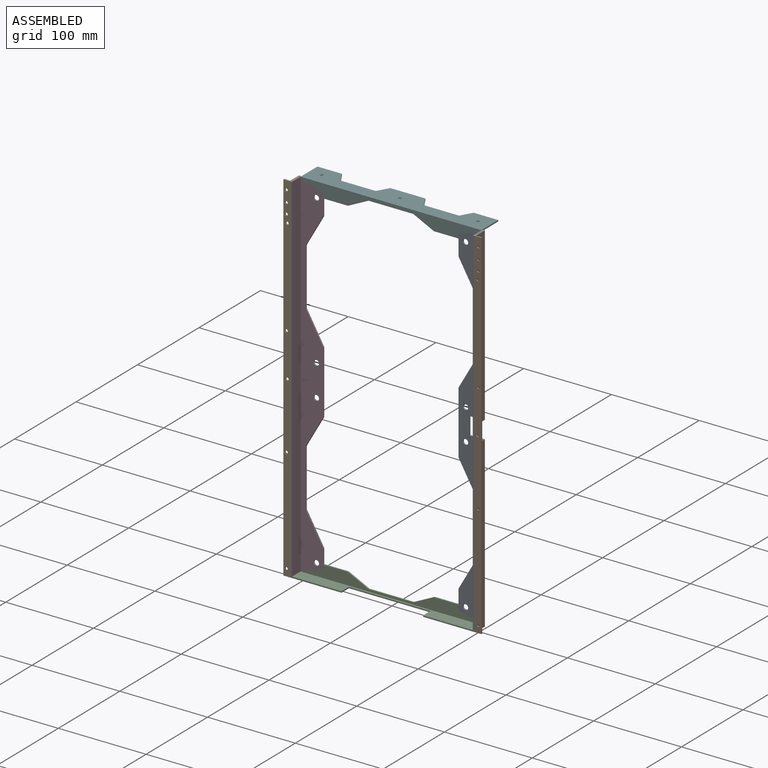
[diagram: assembled view]
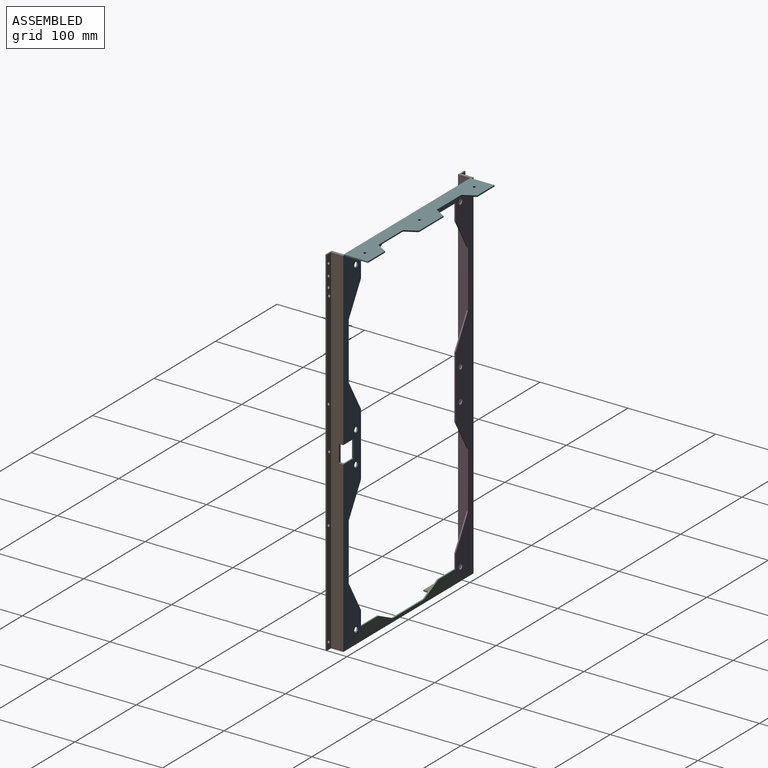
[diagram: assembled view, second angle]
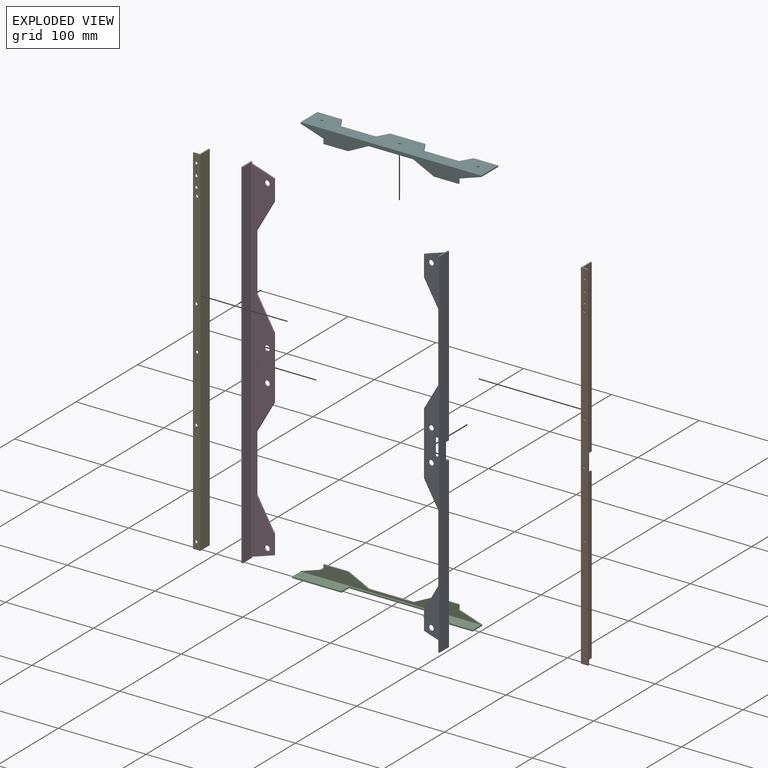
[diagram: exploded view]
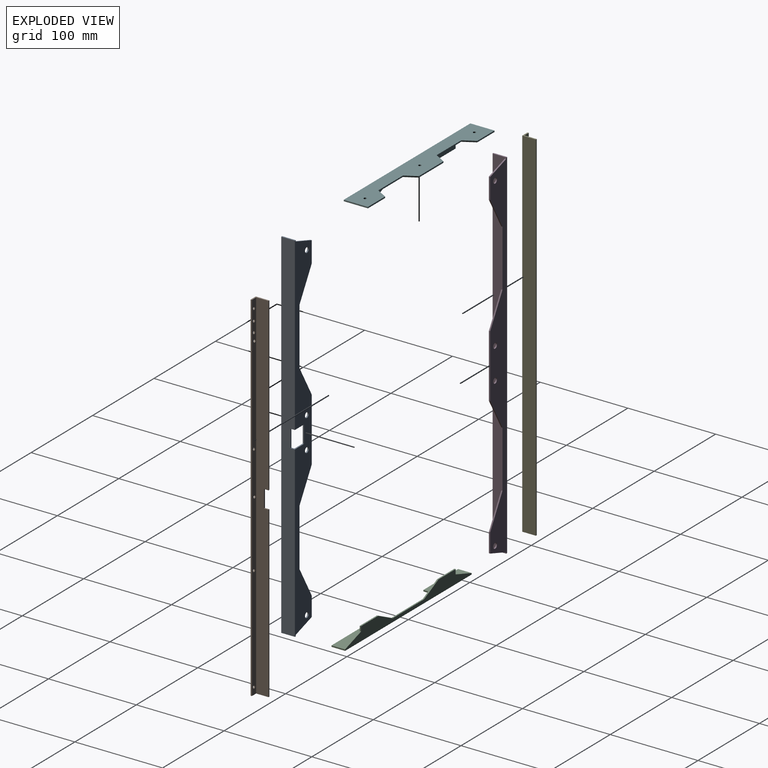
[diagram: exploded view, second angle]
ASSEMBLY  parts=6 mates=6
PART A: 26 faces, bbox 27.5x15.5x408 mm
  f0: plane 408x15.5mm, normal (1,0,0), area 6224mm2, adj f4,f6,f7,f8,f22,f23,f24
  f1: plane 72x1.5mm, normal (-1,0,0), area 108mm2, adj f4,f5,f12,f15
  f2: plane 24x1.5mm, normal (-1,0,0), area 36mm2, adj f4,f5,f11,f17
  f3: plane 22x1.5mm, normal (-1,0,0), area 33mm2, adj f4,f5,f10,f16
  f4: plane 408x27.5mm, normal (0,1,0), area 6507.9mm2, adj f0,f1,f2,f3,f6,f7,f9,f10
  f5: plane 405x26mm, normal (0,-1,0), area 5925.9mm2, adj f1,f2,f3,f9,f10,f11,f12,f13
  f6: plane 15.5x1.5mm, normal (0,0,1), area 23.3mm2, adj f0,f4,f8,f9
  f7: plane 15.5x1.5mm, normal (0,0,-1), area 23.3mm2, adj f0,f4,f8,f9
  f8: plane 408x1.5mm, normal (0,-1,0), area 612mm2, adj f0,f6,f7,f9
  f9: plane 408x15.5mm, normal (-1,0,0), area 5646.5mm2, adj f4,f5,f6,f7,f8,f10,f17,f22
  f10: plane 26x8.5mm, normal (-0.31,0,-0.95), area 41mm2, adj f3,f4,f5,f9
  f11: plane 35x20mm, normal (-0.87,0,-0.5), area 60.5mm2, adj f2,f4,f5,f13
  f12: plane 35x20mm, normal (-0.87,0,0.5), area 60.5mm2, adj f1,f4,f5,f13
  f13: plane 65x1.5mm, normal (-1,0,0), area 97.5mm2, adj f4,f5,f11,f12
  f14: plane 65x1.5mm, normal (-1,0,0), area 97.5mm2, adj f4,f5,f15,f16
  f15: plane 35x20mm, normal (-0.87,0,-0.5), area 60.5mm2, adj f1,f4,f5,f14
  f16: plane 35x20mm, normal (-0.87,0,0.5), area 60.5mm2, adj f3,f4,f5,f14
  f17: plane 26x8.5mm, normal (-0.31,0,0.95), area 41mm2, adj f2,f4,f5,f9
  f18: cylinder r=3mm len=6mm, axis (0,1,0), area 28.3mm2, adj f4,f5
  f19: cylinder r=3mm len=6mm, axis (0,1,0), area 28.3mm2, adj f4,f5
  f20: cylinder r=3mm len=6mm, axis (0,1,0), area 28.3mm2, adj f4,f5
  f21: cylinder r=3mm len=6mm, axis (0,1,0), area 28.3mm2, adj f4,f5
  f22: plane 15x5mm, normal (0,0,-1), area 27.7mm2, adj f0,f4,f5,f9,f23,f25
  f23: plane 20x1.5mm, normal (0,1,0), area 30mm2, adj f0,f9,f22,f24
  f24: plane 15x5mm, normal (0,0,1), area 27.7mm2, adj f0,f4,f5,f9,f23,f25
  f25: plane 20x1.5mm, normal (1,0,0), area 30mm2, adj f4,f5,f22,f24
PART B: 20 faces, bbox 8.3x15.5x408 mm
  f0: plane 193x1.5mm, normal (0,1,0), area 289.5mm2, adj f1,f2,f8,f18
  f1: plane 408x15.5mm, normal (-1,0,0), area 6224mm2, adj f0,f3,f6,f7,f8,f17,f18,f19
  f2: plane 408x14mm, normal (1,0,0), area 5612mm2, adj f0,f3,f4,f7,f8,f17,f18,f19
  f3: plane 195x1.5mm, normal (0,1,0), area 292.5mm2, adj f1,f2,f7,f17
  f4: plane 408x6.8mm, normal (0,1,0), area 2709mm2, adj f2,f5,f7,f8,f9,f10,f11,f12
  f5: plane 408x1.5mm, normal (1,0,0), area 612mm2, adj f4,f6,f7,f8
  f6: plane 408x8.3mm, normal (0,-1,0), area 3321mm2, adj f1,f5,f7,f8,f9,f10,f11,f12
  f7: plane 15.5x8.3mm, normal (0,0,1), area 33.5mm2, adj f1,f2,f3,f4,f5,f6
  f8: plane 15.5x8.3mm, normal (0,0,-1), area 33.5mm2, adj f0,f1,f2,f4,f5,f6
  f9: cylinder r=1.6mm len=3.2mm, axis (0,-1,0), area 15.1mm2, adj f4,f6
  f10: cylinder r=1.6mm len=3.2mm, axis (0,-1,0), area 15.1mm2, adj f4,f6
  f11: cylinder r=1.6mm len=3.2mm, axis (0,-1,0), area 15.1mm2, adj f4,f6
  f12: cylinder r=1.6mm len=3.2mm, axis (0,-1,0), area 15.1mm2, adj f4,f6
  f13: cylinder r=1.6mm len=3.2mm, axis (0,-1,0), area 15.1mm2, adj f4,f6
  f14: cylinder r=1.6mm len=3.2mm, axis (0,-1,0), area 15.1mm2, adj f4,f6
  f15: cylinder r=1.65mm len=3.3mm, axis (0,-1,0), area 15.6mm2, adj f4,f6
  f16: cylinder r=1.65mm len=3.3mm, axis (0,-1,0), area 15.6mm2, adj f4,f6
  f17: plane 5x1.5mm, normal (0,0,-1), area 7.5mm2, adj f1,f2,f3,f19
  f18: plane 5x1.5mm, normal (0,0,1), area 7.5mm2, adj f0,f1,f2,f19
  f19: plane 20x1.5mm, normal (0,1,0), area 30mm2, adj f1,f2,f17,f18
PART C: 20 faces, bbox 206x15.5x15.5 mm
  f0: plane 56.5x1.5mm, normal (0,-1,0), area 84.7mm2, adj f5,f7,f9,f17
  f1: plane 28x1.5mm, normal (0,0,1), area 42mm2, adj f3,f4,f12,f15
  f2: plane 28x1.5mm, normal (0,0,1), area 42mm2, adj f3,f4,f10,f14
  f3: plane 206x15.5mm, normal (0,1,0), area 1829.2mm2, adj f1,f2,f7,f8,f9,f10,f11,f12
  f4: plane 206x14mm, normal (0,-1,0), area 1520.2mm2, adj f1,f2,f5,f10,f11,f12,f13,f14
  f5: plane 206x14mm, normal (0,0,1), area 1768mm2, adj f0,f4,f6,f8,f9,f17,f18,f19
  f6: plane 56.5x1.5mm, normal (0,-1,0), area 84.7mm2, adj f5,f7,f8,f18
  f7: plane 206x15.5mm, normal (0,0,-1), area 2077mm2, adj f0,f3,f6,f8,f9,f17,f18,f19
  f8: plane 15.5x1.5mm, normal (1,0,0), area 23.2mm2, adj f3,f5,f6,f7,f16
  f9: plane 15.5x1.5mm, normal (-1,0,0), area 23.2mm2, adj f0,f3,f5,f7,f11
  f10: plane 5.5x1.5mm, normal (-1,0,0), area 8.3mm2, adj f2,f3,f4,f11
  f11: plane 26x8.5mm, normal (-0.31,0,0.95), area 41mm2, adj f3,f4,f9,f10
  f12: plane 23.5x11.5mm, normal (-0.44,0,0.9), area 39.2mm2, adj f1,f3,f4,f13
  f13: plane 51x1.5mm, normal (0,0,1), area 76.5mm2, adj f3,f4,f12,f14
  f14: plane 23.5x11.5mm, normal (0.44,0,0.9), area 39.2mm2, adj f2,f3,f4,f13
  f15: plane 5.5x1.5mm, normal (1,0,0), area 8.3mm2, adj f1,f3,f4,f16
  f16: plane 26x8.5mm, normal (0.31,0,0.95), area 41mm2, adj f3,f4,f8,f15
  f17: plane 12x1.5mm, normal (1,0,0), area 18mm2, adj f0,f5,f7,f19
  f18: plane 12x1.5mm, normal (-1,0,0), area 18mm2, adj f5,f6,f7,f19
  f19: plane 93x1.5mm, normal (0,-1,0), area 139.5mm2, adj f5,f7,f17,f18
PART D: 22 faces, bbox 27.5x15.5x408 mm
  f0: plane 72x1.5mm, normal (1,0,0), area 108mm2, adj f3,f4,f12,f15
  f1: plane 24x1.5mm, normal (1,0,0), area 36mm2, adj f3,f4,f11,f17
  f2: plane 22x1.5mm, normal (1,0,0), area 33mm2, adj f3,f4,f10,f16
  f3: plane 408x27.5mm, normal (0,1,0), area 6807.9mm2, adj f0,f1,f2,f5,f6,f7,f9,f10
  f4: plane 405x26mm, normal (0,-1,0), area 6195.9mm2, adj f0,f1,f2,f9,f10,f11,f12,f13
  f5: plane 15.5x1.5mm, normal (0,0,1), area 23.3mm2, adj f3,f7,f8,f9
  f6: plane 15.5x1.5mm, normal (0,0,-1), area 23.3mm2, adj f3,f7,f8,f9
  f7: plane 408x15.5mm, normal (-1,0,0), area 6324mm2, adj f3,f5,f6,f8
  f8: plane 408x1.5mm, normal (0,-1,0), area 612mm2, adj f5,f6,f7,f9
  f9: plane 408x15.5mm, normal (1,0,0), area 5716.5mm2, adj f3,f4,f5,f6,f8,f10,f17
  f10: plane 26x8.5mm, normal (0.31,0,-0.95), area 41mm2, adj f2,f3,f4,f9
  f11: plane 35x20mm, normal (0.87,0,-0.5), area 60.5mm2, adj f1,f3,f4,f13
  f12: plane 35x20mm, normal (0.87,0,0.5), area 60.5mm2, adj f0,f3,f4,f13
  f13: plane 65x1.5mm, normal (1,0,0), area 97.5mm2, adj f3,f4,f11,f12
  f14: plane 65x1.5mm, normal (1,0,0), area 97.5mm2, adj f3,f4,f15,f16
  f15: plane 35x20mm, normal (0.87,0,-0.5), area 60.5mm2, adj f0,f3,f4,f14
  f16: plane 35x20mm, normal (0.87,0,0.5), area 60.5mm2, adj f2,f3,f4,f14
  f17: plane 26x8.5mm, normal (0.31,0,0.95), area 41mm2, adj f1,f3,f4,f9
  f18: cylinder r=3mm len=6mm, axis (0,1,0), area 28.3mm2, adj f3,f4
  f19: cylinder r=3mm len=6mm, axis (0,1,0), area 28.3mm2, adj f3,f4
  f20: cylinder r=3mm len=6mm, axis (0,1,0), area 28.3mm2, adj f3,f4
  f21: cylinder r=3mm len=6mm, axis (0,1,0), area 28.3mm2, adj f3,f4
PART E: 16 faces, bbox 8.3x15.5x408 mm
  f0: plane 408x15.5mm, normal (1,0,0), area 6324mm2, adj f1,f5,f6,f7
  f1: plane 408x1.5mm, normal (0,1,0), area 612mm2, adj f0,f2,f6,f7
  f2: plane 408x14mm, normal (-1,0,0), area 5712mm2, adj f1,f3,f6,f7
  f3: plane 408x6.8mm, normal (0,1,0), area 2709mm2, adj f2,f4,f6,f7,f8,f9,f10,f11
  f4: plane 408x1.5mm, normal (-1,0,0), area 612mm2, adj f3,f5,f6,f7
  f5: plane 408x8.3mm, normal (0,-1,0), area 3321mm2, adj f0,f4,f6,f7,f8,f9,f10,f11
  f6: plane 15.5x8.3mm, normal (0,0,1), area 33.5mm2, adj f0,f1,f2,f3,f4,f5
  f7: plane 15.5x8.3mm, normal (0,0,-1), area 33.5mm2, adj f0,f1,f2,f3,f4,f5
  f8: cylinder r=1.6mm len=3.2mm, axis (0,-1,0), area 15.1mm2, adj f3,f5
  f9: cylinder r=1.6mm len=3.2mm, axis (0,-1,0), area 15.1mm2, adj f3,f5
  f10: cylinder r=1.6mm len=3.2mm, axis (0,-1,0), area 15.1mm2, adj f3,f5
  f11: cylinder r=1.6mm len=3.2mm, axis (0,-1,0), area 15.1mm2, adj f3,f5
  f12: cylinder r=1.6mm len=3.2mm, axis (0,-1,0), area 15.1mm2, adj f3,f5
  f13: cylinder r=1.6mm len=3.2mm, axis (0,-1,0), area 15.1mm2, adj f3,f5
  f14: cylinder r=1.65mm len=3.3mm, axis (0,-1,0), area 15.6mm2, adj f3,f5
  f15: cylinder r=1.65mm len=3.3mm, axis (0,-1,0), area 15.6mm2, adj f3,f5
PART F: 27 faces, bbox 206x27.5x15.5 mm
  f0: plane 40x1.5mm, normal (0,1,0), area 60mm2, adj f2,f3,f18,f23
  f1: plane 28x1.5mm, normal (0,1,0), area 42mm2, adj f2,f3,f9,f20
  f2: plane 206x27.5mm, normal (0,0,1), area 4405.9mm2, adj f0,f1,f6,f8,f9,f10,f18,f19
  f3: plane 206x26mm, normal (0,0,-1), area 4096.9mm2, adj f0,f1,f7,f8,f9,f10,f18,f19
  f4: plane 28x1.5mm, normal (0,0,-1), area 42mm2, adj f6,f7,f14,f16
  f5: plane 28x1.5mm, normal (0,0,-1), area 42mm2, adj f6,f7,f11,f15
  f6: plane 206x15.5mm, normal (0,-1,0), area 1829.3mm2, adj f2,f4,f5,f9,f10,f11,f12,f13
  f7: plane 206x14mm, normal (0,1,0), area 1520.2mm2, adj f3,f4,f5,f11,f12,f13,f14,f15
  f8: plane 28x1.5mm, normal (0,1,0), area 42mm2, adj f2,f3,f10,f21
  f9: plane 27.5x1.5mm, normal (1,0,0), area 41.2mm2, adj f1,f2,f3,f6,f12
  f10: plane 27.5x1.5mm, normal (-1,0,0), area 41.2mm2, adj f2,f3,f6,f8,f17
  f11: plane 5.5x1.5mm, normal (1,0,0), area 8.3mm2, adj f5,f6,f7,f12
  f12: plane 26x8.5mm, normal (0.31,0,-0.95), area 41mm2, adj f6,f7,f9,f11
  f13: plane 51x1.5mm, normal (0,0,-1), area 76.5mm2, adj f6,f7,f14,f15
  f14: plane 23.5x11.5mm, normal (0.44,0,-0.9), area 39.2mm2, adj f4,f6,f7,f13
  f15: plane 23.5x11.5mm, normal (-0.44,0,-0.9), area 39.2mm2, adj f5,f6,f7,f13
  f16: plane 5.5x1.5mm, normal (-1,0,0), area 8.3mm2, adj f4,f6,f7,f17
  f17: plane 26x8.5mm, normal (-0.31,0,-0.95), area 41mm2, adj f6,f7,f10,f16
  f18: plane 13x7.5mm, normal (0.87,0.5,0), area 22.5mm2, adj f0,f2,f3,f19
  f19: plane 40x1.5mm, normal (0,1,0), area 60mm2, adj f2,f3,f18,f20
  f20: plane 13x7.5mm, normal (-0.87,0.5,0), area 22.5mm2, adj f1,f2,f3,f19
  f21: plane 13x7.5mm, normal (0.87,0.5,0), area 22.5mm2, adj f2,f3,f8,f22
  f22: plane 40x1.5mm, normal (0,1,0), area 60mm2, adj f2,f3,f21,f23
  f23: plane 13x7.5mm, normal (-0.87,0.5,0), area 22.5mm2, adj f0,f2,f3,f22
  f24: cylinder r=1.6mm len=3.2mm, axis (0,0,1), area 15.1mm2, adj f2,f3
  f25: cylinder r=1.6mm len=3.2mm, axis (0,0,1), area 15.1mm2, adj f2,f3
  f26: cylinder r=1.6mm len=3.2mm, axis (0,0,1), area 15.1mm2, adj f2,f3
PLACE A at identity fixed
PLACE B at identity
PLACE C t=(0,0,-204)mm
PLACE D at identity fixed
PLACE E at identity
PLACE F t=(0,-1.5,188.5)mm
MATE fastened F.f11 <-> A.f2  axis (1,0,0) through (77,-1.5,194)mm
MATE fastened D.f2 <-> C.f10  axis (1,0,0) through (-77,0,-194)mm
MATE fastened C.f8 <-> A.f9  axis (1,0,0) through (103,0,-204)mm
MATE fastened E.f0 <-> D.f7  axis (1,0,0) through (-104.5,-15.5,204)mm
MATE fastened B.f1 <-> A.f0  axis (-1,0,0) through (104.5,-15.5,204)mm
MATE fastened F.f16 <-> D.f1  axis (-1,0,0) through (-77,-0.75,194)mm
